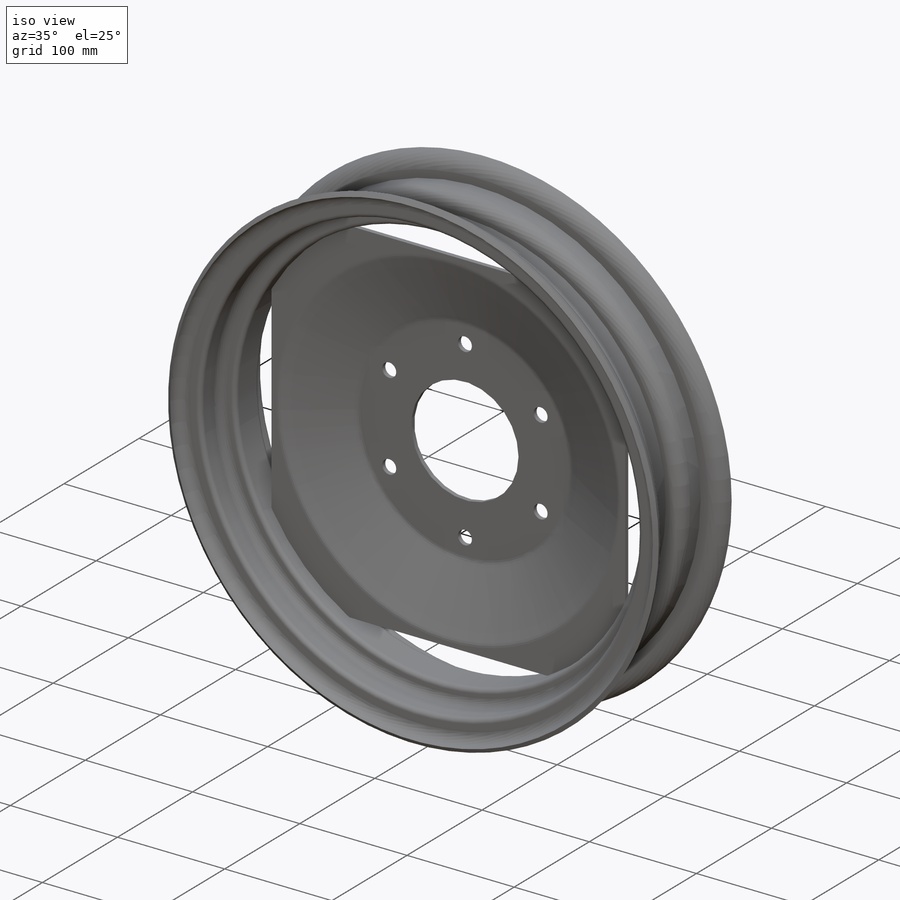
[diagram: iso view]
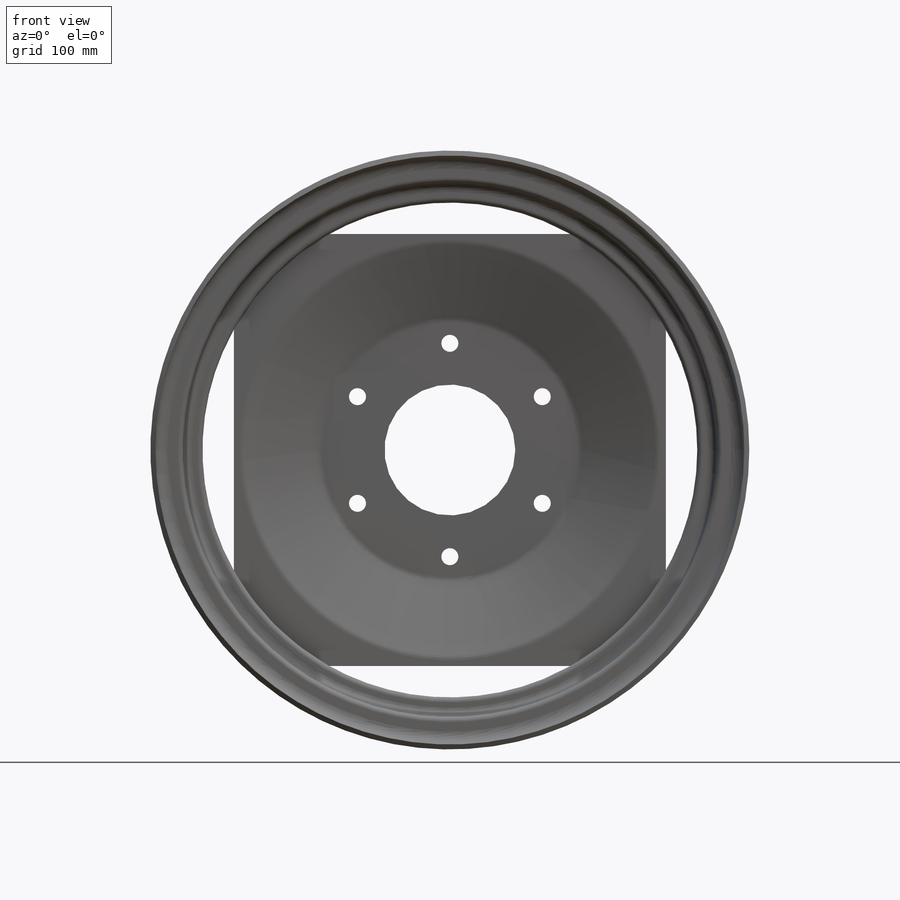
[diagram: front view]
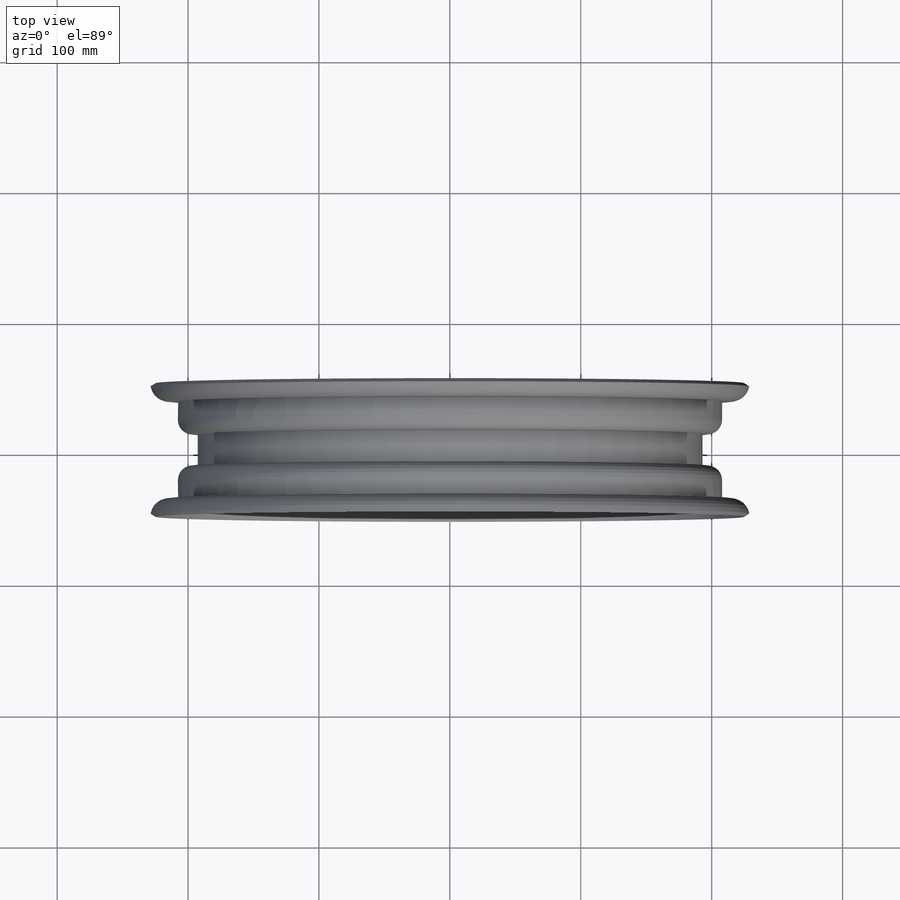
[diagram: top view]
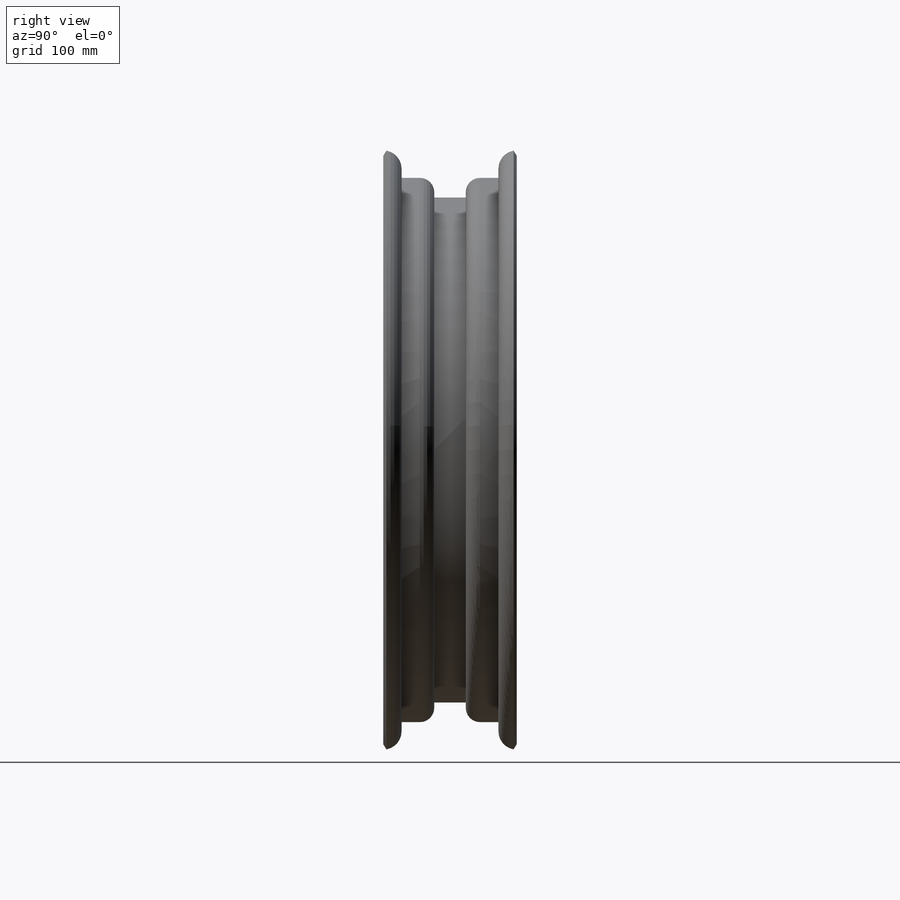
[diagram: right view]
SOLIDWORKS PART (.sldprt)
format: sldprt  version: not decoded by parser v0  size: 445,440 bytes
history: native  units: mm
features: sketch x4, material x1, revolve x1, cut_extrude x1, hole x1 (+13 scaffold rows collapsed)
feature tree (21):
  scaffold x13  (default folders/planes/origin — collapsed)
  material  "Material <not specified>"
  sketch  "Sketch2"  dims[c1.D2=7.0mm c1.D3=10.0mm c1.D11=10.0mm c1.D20=10.0mm c1.D8=4.0mm c1.D1=32.0mm c2.D2=25.0mm c2.D3=15.0mm c2.D4=20.5mm c2.D5=8.0mm c2.D6=8.0mm c2.D7=98.0mm c2.D8=189.0mm c2.D9=15.0mm c2.D10=4.0mm c2.D11=~4.206506mm c3.D10=2.0mm c3.D11=~1.301805mm c4.D11=~199.27973deg c5.D11=11.0mm c5.D12=4.0mm c5.D4=4.0mm c5.D5=4.0mm c5.D6=2.0mm c5.D7=50.0mm c5.D10=~19.011097mm c5.D13=~45.509988mm c6.D10=50.0mm c6.D13=~61.682302mm c7.D13=20.0deg c7.D14=~21.971286mm c8.D14=160.0deg c9.D14=~21.971286mm c10.D14=20.0deg c11.D14=~59.226155mm c12.D14=20.0deg c12.D15=4.0mm c12.D5=20.0mm c12.D13=30.0mm c13.D14=189.0mm c13.D16=2.0mm c13.D17=36.0mm c13.D18=102.0mm c13.D19=4.5mm c13.D21=24.0mm c13.D8=0.0mm c13.D12=4.0mm]
  revolve  "Revolve1"  Angle=360deg
  sketch  "Sketch6"  dims[D1=165.0mm D2=4.0]
  cut_extrude  "Cut-Extrude1"  [1 undecoded]
  hole  "Ø13.0 (13) Diameter Hole1"  Diameter=13mm Depth=30mm
  sketch  "Sketch8"  dims[D2=81.5mm D3=81.5mm D1=6.0]
  sketch  "Sketch7"  dims[hole-wizard template sketch: 46 standard entries collapsed; hole parameters kept: c15.Hole Dia.=13.0mm c15.Hole Depth=30.0mm c15.D3=~14.816244mm c15.Drill Angle=180.0deg]
decode coverage: 6 of 7 modeling features carry decoded parameters
note: ~ marks probable driven/reference dimensions
note: 1 parameter value undecoded
note: suppression state not decoded; provenance and decode notes live in map.json
